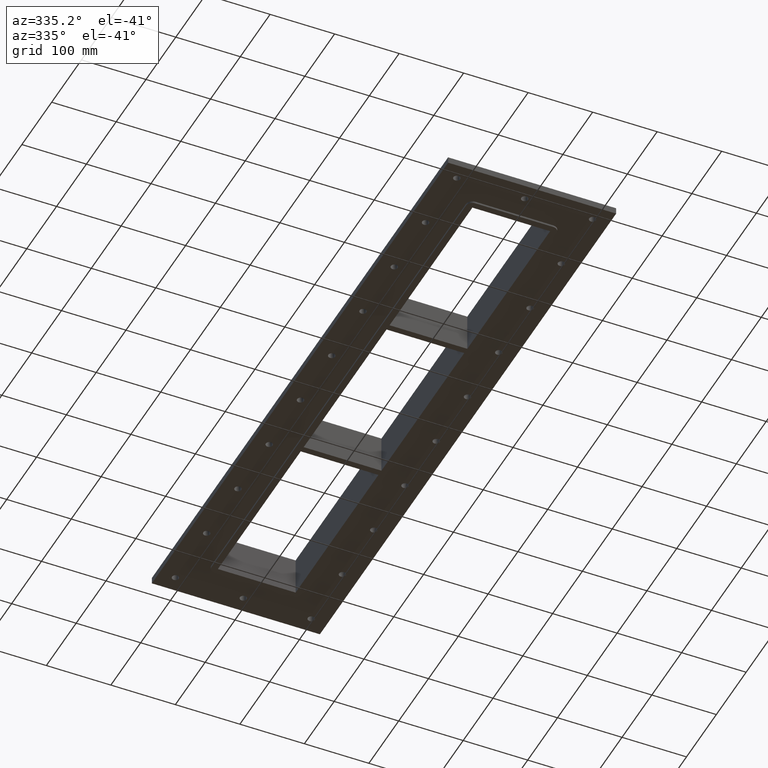
[diagram: clean part render]
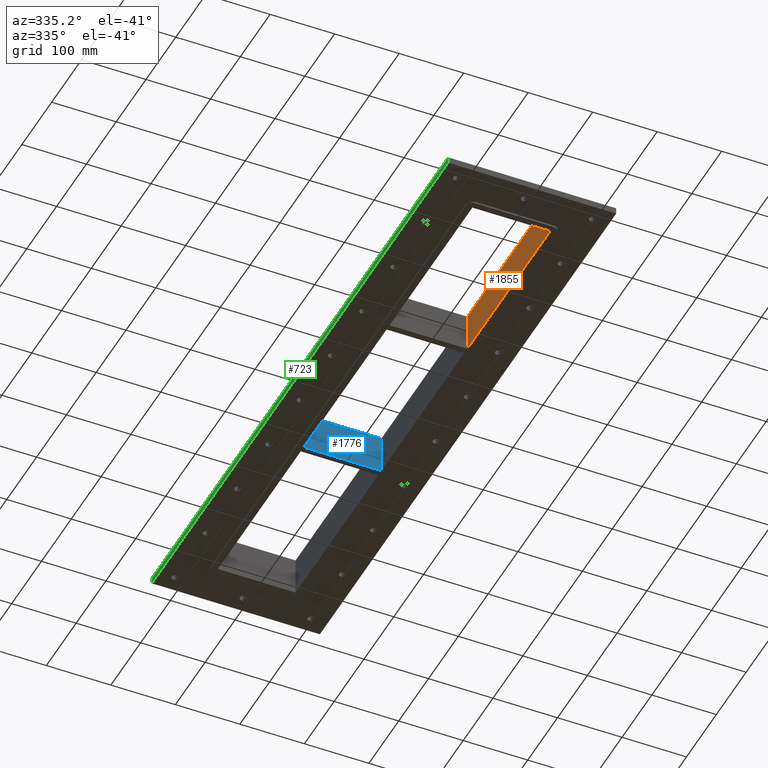
[diagram: same view with three faces highlighted in distinct colors, each labeled with its STEP entity id]
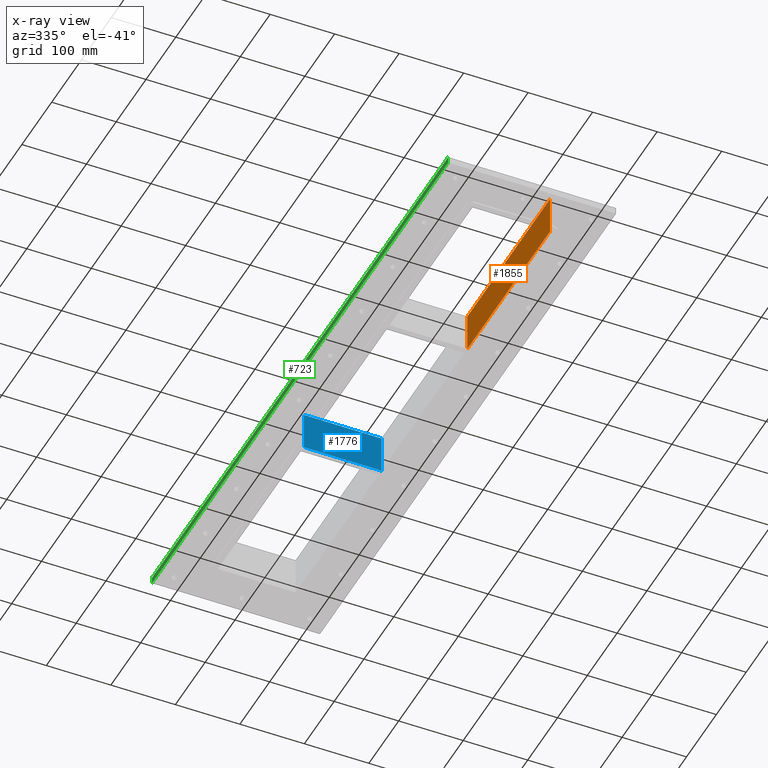
[diagram: x-ray of the same camera — body ghosted, the three highlighted faces saturated]
A machine part, auxiliary view with three faces highlighted in distinct colors.
The next image is the same camera in x-ray (body ghosted, the three faces saturated) — at least one of them is partly hidden behind the body in this view.
Their STEP definitions:

[orange] entity #1855 — the highlighted planar face has unit normal (1, 0, 0).
#1442=CARTESIAN_POINT('',(60.250000000000199,-427.00000000000057,-30.0));
#1443=VERTEX_POINT('',#1442);
#1444=CARTESIAN_POINT('',(60.250000000000199,-149.0000000000006,-30.0));
#1445=VERTEX_POINT('',#1444);
#1446=CARTESIAN_POINT('',(60.250000000000199,-427.00000000000057,-30.0));
#1447=DIRECTION('',(0.0,1.0,0.0));
#1448=VECTOR('',#1447,278.0);
#1449=LINE('',#1446,#1448);
#1450=EDGE_CURVE('',#1443,#1445,#1449,.T.);
#1815=CARTESIAN_POINT('',(60.250000000000199,-427.00000000000057,30.0));
#1816=VERTEX_POINT('',#1815);
#1823=CARTESIAN_POINT('',(60.250000000000199,-427.00000000000057,30.0));
#1824=DIRECTION('',(0.0,0.0,-1.0));
#1825=VECTOR('',#1824,60.0);
#1826=LINE('',#1823,#1825);
#1827=EDGE_CURVE('',#1816,#1443,#1826,.T.);
#1832=CARTESIAN_POINT('',(60.250000000000199,-149.0000000000006,30.0));
#1833=DIRECTION('',(1.0,0.0,0.0));
#1834=DIRECTION('',(0.0,-1.0,0.0));
#1835=AXIS2_PLACEMENT_3D('',#1832,#1833,#1834);
#1836=PLANE('',#1835);
#1837=ORIENTED_EDGE('',*,*,#1450,.F.);
#1838=ORIENTED_EDGE('',*,*,#1827,.F.);
#1839=CARTESIAN_POINT('',(60.250000000000199,-149.0000000000006,30.0));
#1840=VERTEX_POINT('',#1839);
#1841=CARTESIAN_POINT('',(60.250000000000199,-149.0000000000006,30.0));
#1842=DIRECTION('',(0.0,-1.0,0.0));
#1843=VECTOR('',#1842,278.0);
#1844=LINE('',#1841,#1843);
#1845=EDGE_CURVE('',#1840,#1816,#1844,.T.);
#1846=ORIENTED_EDGE('',*,*,#1845,.F.);
#1847=CARTESIAN_POINT('',(60.250000000000199,-149.0000000000006,30.0));
#1848=DIRECTION('',(0.0,0.0,-1.0));
#1849=VECTOR('',#1848,60.0);
#1850=LINE('',#1847,#1849);
#1851=EDGE_CURVE('',#1840,#1445,#1850,.T.);
#1852=ORIENTED_EDGE('',*,*,#1851,.T.);
#1853=EDGE_LOOP('',(#1837,#1838,#1846,#1852));
#1854=FACE_OUTER_BOUND('',#1853,.T.);
#1855=ADVANCED_FACE('',(#1854),#1836,.F.);

[blue] entity #1776 — the highlighted planar face has unit normal (0, 1, 0).
#1408=CARTESIAN_POINT('',(-60.250000000000014,138.99999999999943,-30.0));
#1409=VERTEX_POINT('',#1408);
#1426=CARTESIAN_POINT('',(60.250000000000099,138.99999999999943,-30.0));
#1427=VERTEX_POINT('',#1426);
#1434=CARTESIAN_POINT('',(60.250000000000085,138.99999999999943,-30.0));
#1435=DIRECTION('',(-1.0,0.0,0.0));
#1436=VECTOR('',#1435,120.5000000000001);
#1437=LINE('',#1434,#1436);
#1438=EDGE_CURVE('',#1427,#1409,#1437,.T.);
#1687=CARTESIAN_POINT('',(-60.250000000000014,138.99999999999943,30.0));
#1688=VERTEX_POINT('',#1687);
#1689=CARTESIAN_POINT('',(-60.250000000000014,138.99999999999943,30.0));
#1690=DIRECTION('',(0.0,0.0,-1.0));
#1691=VECTOR('',#1690,60.0);
#1692=LINE('',#1689,#1691);
#1693=EDGE_CURVE('',#1688,#1409,#1692,.T.);
#1743=CARTESIAN_POINT('',(60.250000000000099,138.99999999999943,30.0));
#1744=VERTEX_POINT('',#1743);
#1751=CARTESIAN_POINT('',(60.250000000000099,138.99999999999943,30.0));
#1752=DIRECTION('',(0.0,0.0,-1.0));
#1753=VECTOR('',#1752,60.0);
#1754=LINE('',#1751,#1753);
#1755=EDGE_CURVE('',#1744,#1427,#1754,.T.);
#1760=CARTESIAN_POINT('',(-60.250000000000014,138.99999999999943,30.0));
#1761=DIRECTION('',(0.0,1.0,0.0));
#1762=DIRECTION('',(1.0,0.0,0.0));
#1763=AXIS2_PLACEMENT_3D('',#1760,#1761,#1762);
#1764=PLANE('',#1763);
#1765=ORIENTED_EDGE('',*,*,#1438,.F.);
#1766=ORIENTED_EDGE('',*,*,#1755,.F.);
#1767=CARTESIAN_POINT('',(-60.250000000000014,138.99999999999943,30.0));
#1768=DIRECTION('',(1.0,0.0,0.0));
#1769=VECTOR('',#1768,120.5000000000001);
#1770=LINE('',#1767,#1769);
#1771=EDGE_CURVE('',#1688,#1744,#1770,.T.);
#1772=ORIENTED_EDGE('',*,*,#1771,.F.);
#1773=ORIENTED_EDGE('',*,*,#1693,.T.);
#1774=EDGE_LOOP('',(#1765,#1766,#1772,#1773));
#1775=FACE_OUTER_BOUND('',#1774,.T.);
#1776=ADVANCED_FACE('',(#1775),#1764,.F.);

[green] entity #723 — the highlighted planar face has unit normal (-1, 0, 0).
#684=CARTESIAN_POINT('',(-130.25000000000006,497.0,-27.0));
#685=DIRECTION('',(-1.0,0.0,0.0));
#686=DIRECTION('',(0.0,-1.0,0.0));
#687=AXIS2_PLACEMENT_3D('',#684,#685,#686);
#688=PLANE('',#687);
#689=CARTESIAN_POINT('',(-130.25,-497.0,-27.0));
#690=VERTEX_POINT('',#689);
#691=CARTESIAN_POINT('',(-130.25000000000006,497.0,-27.0));
#692=VERTEX_POINT('',#691);
#693=CARTESIAN_POINT('',(-130.25,-497.0,-27.0));
#694=DIRECTION('',(0.0,1.0,0.0));
#695=VECTOR('',#694,994.0);
#696=LINE('',#693,#695);
#697=EDGE_CURVE('',#690,#692,#696,.T.);
#698=ORIENTED_EDGE('',*,*,#697,.F.);
#699=CARTESIAN_POINT('',(-130.25,-497.0,-17.0));
#700=VERTEX_POINT('',#699);
#701=CARTESIAN_POINT('',(-130.25,-497.0,-27.0));
#702=DIRECTION('',(0.0,0.0,1.0));
#703=VECTOR('',#702,10.0);
#704=LINE('',#701,#703);
#705=EDGE_CURVE('',#690,#700,#704,.T.);
#706=ORIENTED_EDGE('',*,*,#705,.T.);
#707=CARTESIAN_POINT('',(-130.25000000000006,497.0,-17.0));
#708=VERTEX_POINT('',#707);
#709=CARTESIAN_POINT('',(-130.25000000000006,497.0,-17.0));
#710=DIRECTION('',(0.0,-1.0,0.0));
#711=VECTOR('',#710,994.0);
#712=LINE('',#709,#711);
#713=EDGE_CURVE('',#708,#700,#712,.T.);
#714=ORIENTED_EDGE('',*,*,#713,.F.);
#715=CARTESIAN_POINT('',(-130.25000000000006,497.0,-27.0));
#716=DIRECTION('',(0.0,0.0,1.0));
#717=VECTOR('',#716,10.0);
#718=LINE('',#715,#717);
#719=EDGE_CURVE('',#692,#708,#718,.T.);
#720=ORIENTED_EDGE('',*,*,#719,.F.);
#721=EDGE_LOOP('',(#698,#706,#714,#720));
#722=FACE_OUTER_BOUND('',#721,.T.);
#723=ADVANCED_FACE('',(#722),#688,.T.);